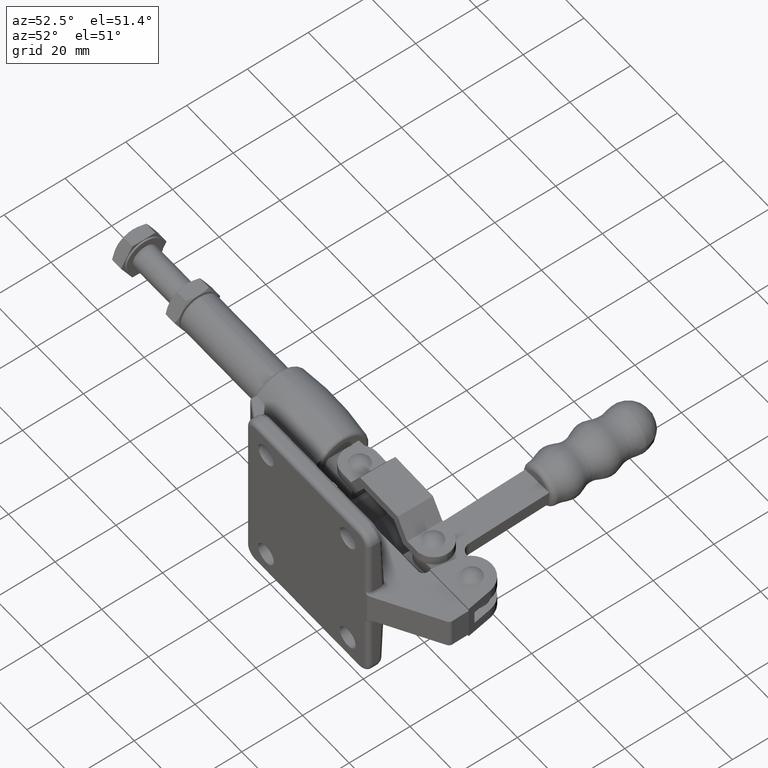
[diagram: clean part render]
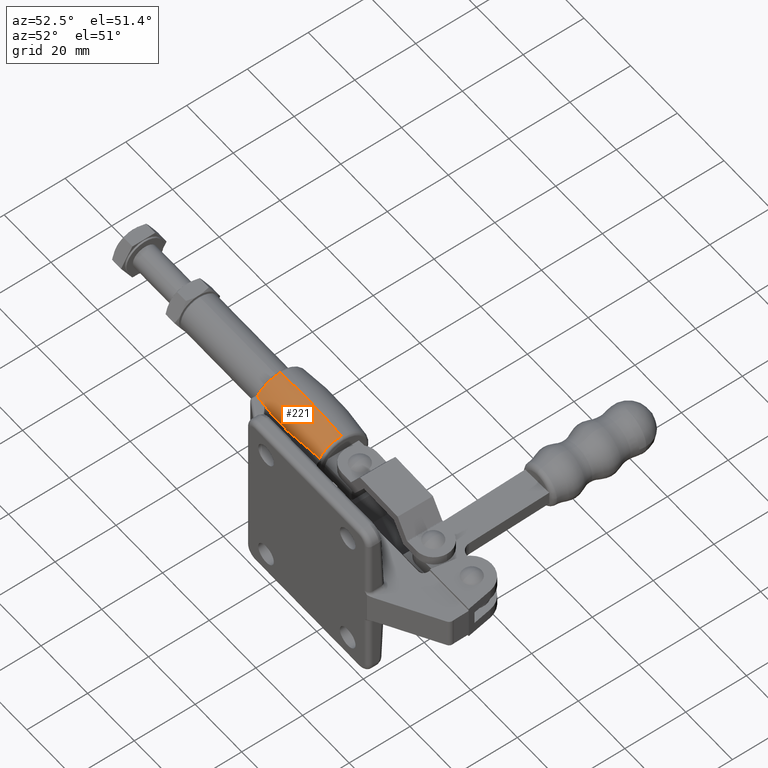
[diagram: same view with one face highlighted and labeled with its STEP entity id]
A machine part, auxiliary view. The second image highlights one B-rep face of the part: STEP entity #221.
In plain terms, the highlighted toroidal blend (fillet) surface has major radius 88.7704 mm and minor (blend) radius 98.5 mm.
Its self-contained STEP definition (entity closure, byte-faithful):
#128 = CARTESIAN_POINT ( 'NONE',  ( -88.63975539190462900, 17.81258127420639400, 4.900000000000170000 ) ) ;
#221 = ADVANCED_FACE ( 'NONE', ( #8484 ), #6493, .T. ) ;
#251 = B_SPLINE_CURVE_WITH_KNOTS ( 'NONE', 3,
 ( #7552, #4426, #2793, #6080, #3491, #1830, #1225, #1098, #8276, #4171, #681, #1197 ),
 .UNSPECIFIED., .F., .F.,
 ( 4, 2, 2, 2, 2, 4 ),
 ( 0.1193302356728853900, 0.1255279190293825400, 0.1286267607076311000, 0.1317256023858796600, 0.1379232857423767800, 0.1441209690988738700 ),
 .UNSPECIFIED. ) ;
#312 = EDGE_CURVE ( 'NONE', #7985, #9189, #1383, .T. ) ;
#317 = AXIS2_PLACEMENT_3D ( 'NONE', #2077, #7270, #2851 ) ;
#681 = CARTESIAN_POINT ( 'NONE',  ( -86.55297170730399600, 17.51646939538296300, 4.900000000000118500 ) ) ;
#968 = CARTESIAN_POINT ( 'NONE',  ( -62.96546490074217700, 18.00000000000000700, 4.639170850208137700 ) ) ;
#985 = EDGE_CURVE ( 'NONE', #8056, #2675, #251, .T. ) ;
#1072 = CARTESIAN_POINT ( 'NONE',  ( -62.70901009890511800, 18.00000000000000400, 4.569024234925343800 ) ) ;
#1098 = CARTESIAN_POINT ( 'NONE',  ( -78.30140565216574100, 16.97990378225467700, 4.900000000000120300 ) ) ;
#1186 = EDGE_CURVE ( 'NONE', #8605, #8056, #3278, .T. ) ;
#1197 = CARTESIAN_POINT ( 'NONE',  ( -88.60000000000020700, 17.80694003602905400, 4.900000000000119400 ) ) ;
#1225 = CARTESIAN_POINT ( 'NONE',  ( -75.18399067522878500, 17.00611838970275300, 4.900000000000118500 ) ) ;
#1383 = CIRCLE ( 'NONE', #2721, 9.022510358537305200 ) ;
#1642 = ORIENTED_EDGE ( 'NONE', *, *, #312, .F. ) ;
#1720 = ORIENTED_EDGE ( 'NONE', *, *, #985, .F. ) ;
#1830 = CARTESIAN_POINT ( 'NONE',  ( -74.16208773471977600, 17.03347433393123800, 4.900000000000118500 ) ) ;
#1882 = EDGE_LOOP ( 'NONE', ( #5664, #7688, #1642, #9577, #1720, #8315 ) ) ;
#2021 = CARTESIAN_POINT ( 'NONE',  ( -88.71960293708666300, 25.40000000000009100, 9.022510358537410000 ) ) ;
#2077 = CARTESIAN_POINT ( 'NONE',  ( -62.45293712422170500, 25.40000000000009100, 0.0000000000000000000 ) ) ;
#2364 = CARTESIAN_POINT ( 'NONE',  ( -88.71960293708666300, 17.81936757587393000, 4.892821805481993600 ) ) ;
#2532 = CARTESIAN_POINT ( 'NONE',  ( -63.99365595569698700, 18.00000000000000700, 4.900000000000119400 ) ) ;
#2675 = VERTEX_POINT ( 'NONE', #6926 ) ;
#2721 = AXIS2_PLACEMENT_3D ( 'NONE', #3910, #6150, #8402 ) ;
#2793 = CARTESIAN_POINT ( 'NONE',  ( -68.02987524972044800, 17.43967929843386200, 4.900000000000117600 ) ) ;
#2851 = DIRECTION ( 'NONE',  ( 0.0000000000000000000, 0.0000000000000000000, 1.000000000000000000 ) ) ;
#2970 = DIRECTION ( 'NONE',  ( 0.0000000000000000000, -1.000000000000000000, 0.0000000000000000000 ) ) ;
#3043 = AXIS2_PLACEMENT_3D ( 'NONE', #7400, #2970, #8168 ) ;
#3112 = CARTESIAN_POINT ( 'NONE',  ( -88.71960293708666300, 17.81936757587393000, 4.892821805481993600 ) ) ;
#3237 = CIRCLE ( 'NONE', #317, 8.658596408787921900 ) ;
#3278 = B_SPLINE_CURVE_WITH_KNOTS ( 'NONE', 3,
 ( #8757, #1072, #968, #6652, #3774, #4794 ),
 .UNSPECIFIED., .F., .F.,
 ( 4, 2, 4 ),
 ( 0.008595698450605886500, 0.009399287032505554800, 0.01020287561440522300 ),
 .UNSPECIFIED. ) ;
#3491 = CARTESIAN_POINT ( 'NONE',  ( -72.11054077988649200, 17.12544940754015600, 4.900000000000120300 ) ) ;
#3646 = EDGE_CURVE ( 'NONE', #7985, #2675, #4621, .T. ) ;
#3774 = CARTESIAN_POINT ( 'NONE',  ( -63.73620161520200600, 18.00000000000000400, 4.838179466210036100 ) ) ;
#3910 = CARTESIAN_POINT ( 'NONE',  ( -88.71960293708666300, 25.40000000000009100, 0.0000000000000000000 ) ) ;
#4171 = CARTESIAN_POINT ( 'NONE',  ( -84.49775669716214600, 17.30667740680014100, 4.900000000000118500 ) ) ;
#4426 = CARTESIAN_POINT ( 'NONE',  ( -66.00464659144114400, 17.68025265934020500, 4.900000000000118500 ) ) ;
#4621 = B_SPLINE_CURVE_WITH_KNOTS ( 'NONE', 3,
 ( #3112, #6055, #128, #5340 ),
 .UNSPECIFIED., .F., .F.,
 ( 4, 4 ),
 ( 0.0000000000000000000, 0.0001204609180723921200 ),
 .UNSPECIFIED. ) ;
#4794 = CARTESIAN_POINT ( 'NONE',  ( -63.99365595569698700, 18.00000000000000700, 4.900000000000119400 ) ) ;
#5340 = CARTESIAN_POINT ( 'NONE',  ( -88.60000000000020700, 17.80694003602905400, 4.900000000000119400 ) ) ;
#5664 = ORIENTED_EDGE ( 'NONE', *, *, #7759, .T. ) ;
#6055 = CARTESIAN_POINT ( 'NONE',  ( -88.67982188263897600, 17.81675682464417700, 4.897614136720157800 ) ) ;
#6080 = CARTESIAN_POINT ( 'NONE',  ( -71.08771636386011000, 17.19002369408064400, 4.900000000000119400 ) ) ;
#6150 = DIRECTION ( 'NONE',  ( -1.000000000000000000, 0.0000000000000000000, 0.0000000000000000000 ) ) ;
#6330 = CIRCLE ( 'NONE', #3043, 98.50000000000221700 ) ;
#6493 = TOROIDAL_SURFACE ( 'NONE', #7874, -88.77042745297970300, 98.50000000000221700 ) ;
#6652 = CARTESIAN_POINT ( 'NONE',  ( -63.47906055812428900, 18.00000000000000000, 4.773749305226592000 ) ) ;
#6926 = CARTESIAN_POINT ( 'NONE',  ( -88.60000000000020700, 17.80694003602905400, 4.900000000000119400 ) ) ;
#7002 = VERTEX_POINT ( 'NONE', #8458 ) ;
#7270 = DIRECTION ( 'NONE',  ( -1.000000000000000000, 0.0000000000000000000, 0.0000000000000000000 ) ) ;
#7400 = CARTESIAN_POINT ( 'NONE',  ( -76.93863038838921400, 25.40000000000009100, -88.77042745297970300 ) ) ;
#7552 = CARTESIAN_POINT ( 'NONE',  ( -63.99365595569698700, 18.00000000000000700, 4.900000000000119400 ) ) ;
#7688 = ORIENTED_EDGE ( 'NONE', *, *, #8904, .T. ) ;
#7759 = EDGE_CURVE ( 'NONE', #8605, #7002, #3237, .T. ) ;
#7874 = AXIS2_PLACEMENT_3D ( 'NONE', #8716, #8009, #8788 ) ;
#7985 = VERTEX_POINT ( 'NONE', #2364 ) ;
#8009 = DIRECTION ( 'NONE',  ( -1.000000000000000000, 0.0000000000000000000, 0.0000000000000000000 ) ) ;
#8056 = VERTEX_POINT ( 'NONE', #2532 ) ;
#8168 = DIRECTION ( 'NONE',  ( 0.0000000000000000000, 0.0000000000000000000, -1.000000000000000000 ) ) ;
#8276 = CARTESIAN_POINT ( 'NONE',  ( -80.37198244727459000, 17.03830809773745300, 4.900000000000120300 ) ) ;
#8315 = ORIENTED_EDGE ( 'NONE', *, *, #1186, .F. ) ;
#8402 = DIRECTION ( 'NONE',  ( 0.0000000000000000000, 0.0000000000000000000, 1.000000000000000000 ) ) ;
#8458 = CARTESIAN_POINT ( 'NONE',  ( -62.45293712422170500, 25.40000000000009100, 8.658596408788014300 ) ) ;
#8484 = FACE_OUTER_BOUND ( 'NONE', #1882, .T. ) ;
#8605 = VERTEX_POINT ( 'NONE', #9124 ) ;
#8716 = CARTESIAN_POINT ( 'NONE',  ( -76.93863038838921400, 25.40000000000009100, 0.0000000000000000000 ) ) ;
#8757 = CARTESIAN_POINT ( 'NONE',  ( -62.45293712422170500, 18.00000000000201400, 4.495697028304231700 ) ) ;
#8788 = DIRECTION ( 'NONE',  ( 0.0000000000000000000, 0.0000000000000000000, 1.000000000000000000 ) ) ;
#8904 = EDGE_CURVE ( 'NONE', #7002, #9189, #6330, .T. ) ;
#9124 = CARTESIAN_POINT ( 'NONE',  ( -62.45293712422170500, 18.00000000000201400, 4.495697028304231700 ) ) ;
#9189 = VERTEX_POINT ( 'NONE', #2021 ) ;
#9577 = ORIENTED_EDGE ( 'NONE', *, *, #3646, .T. ) ;